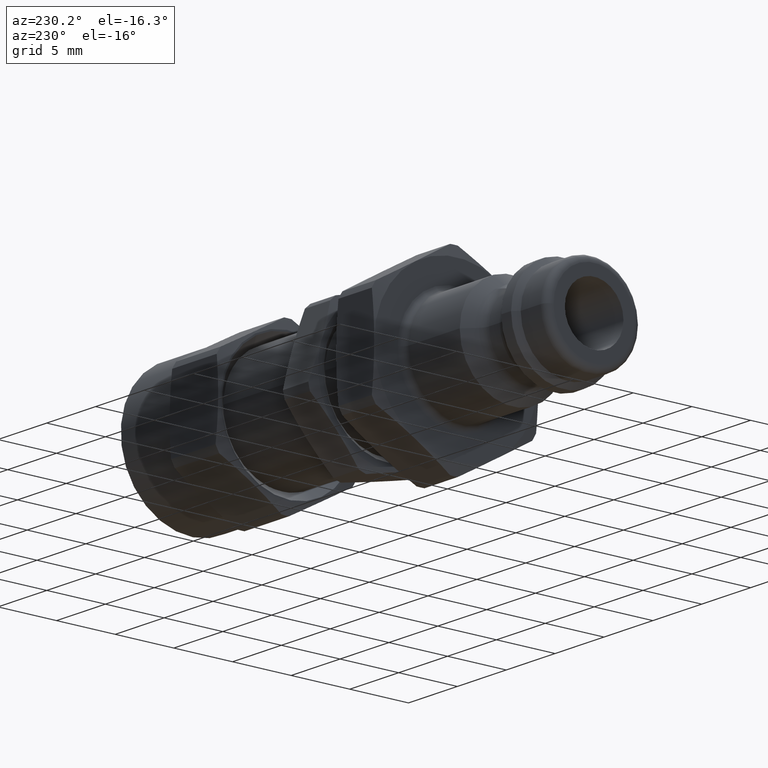
[diagram: clean part render]
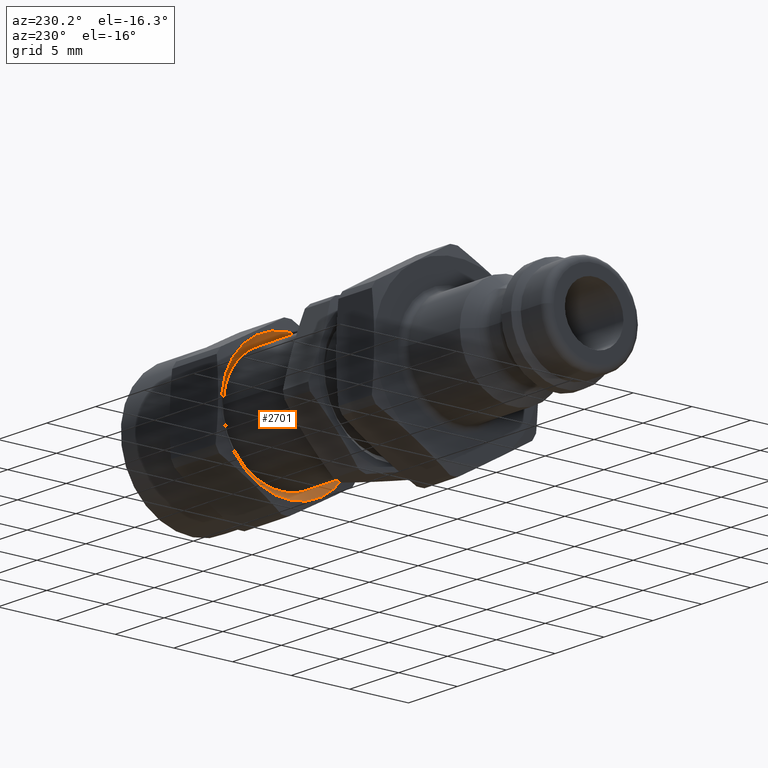
[diagram: same view with one face highlighted and labeled with its STEP entity id]
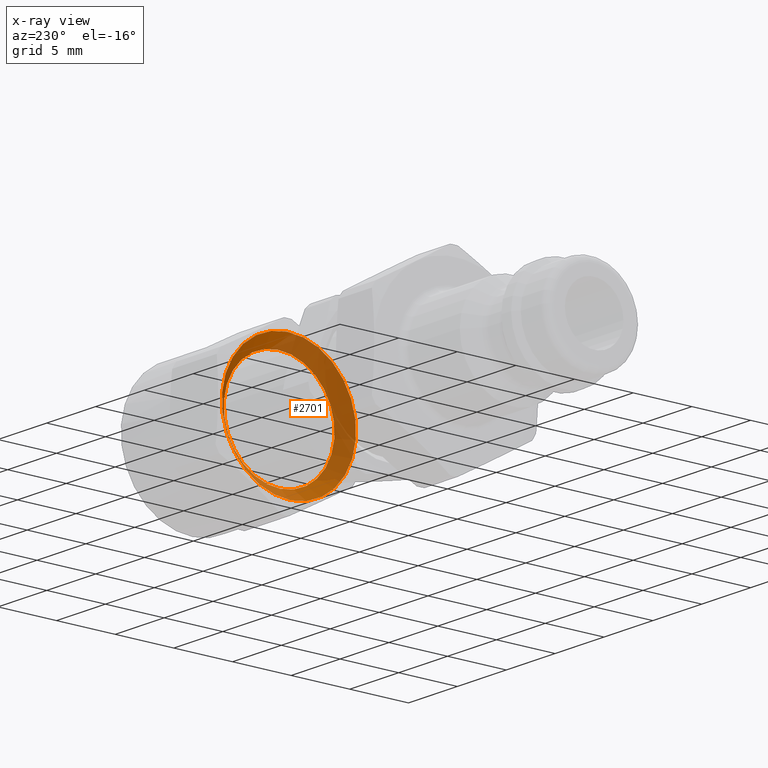
[diagram: x-ray of the same camera — body ghosted, the highlighted face saturated]
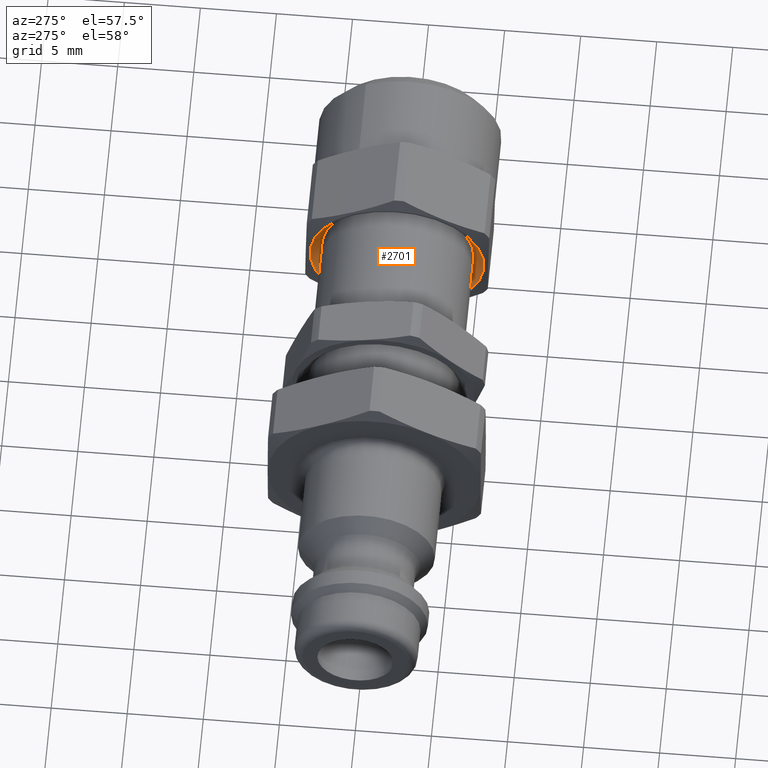
[diagram: same view with one face highlighted and labeled with its STEP entity id]
A machine part, auxiliary view. The second image highlights one B-rep face of the part: STEP entity #2701.
The next image is the same camera in x-ray: the body ghosted, the highlighted face saturated — about 65% of this face is hidden behind the body in this view.
A second angle (auxiliary view) of the same face is appended — the face is thin or edge-on in the first view.
In plain terms, the highlighted conical surface has half-angle 45 deg.
Its self-contained STEP definition (entity closure, byte-faithful):
#2674=CARTESIAN_POINT('',(10.499999999999998,1.285879E-015,0.0));
#2675=DIRECTION('',(1.0,1.224647E-016,0.0));
#2676=DIRECTION('',(0.0,-1.0,0.0));
#2677=AXIS2_PLACEMENT_3D('',#2674,#2675,#2676);
#2678=CONICAL_SURFACE('',#2677,5.223715095029409,44.999999999999922);
#2679=CARTESIAN_POINT('',(11.0,5.723715095029409,7.009529E-016));
#2680=VERTEX_POINT('',#2679);
#2681=CARTESIAN_POINT('',(11.0,1.347111E-015,0.0));
#2682=DIRECTION('',(1.0,0.0,0.0));
#2683=DIRECTION('',(0.0,-1.0,0.0));
#2684=AXIS2_PLACEMENT_3D('',#2681,#2682,#2683);
#2685=CIRCLE('',#2684,5.723715095029408);
#2686=EDGE_CURVE('',#2680,#2680,#2685,.T.);
#2687=ORIENTED_EDGE('',*,*,#2686,.T.);
#2688=EDGE_LOOP('',(#2687));
#2689=FACE_OUTER_BOUND('',#2688,.T.);
#2690=CARTESIAN_POINT('',(9.999999999999998,4.72371509502941,-5.784883E-016));
#2691=VERTEX_POINT('',#2690);
#2692=CARTESIAN_POINT('',(9.999999999999998,1.224647E-015,0.0));
#2693=DIRECTION('',(-1.0,0.0,0.0));
#2694=DIRECTION('',(0.0,-1.0,0.0));
#2695=AXIS2_PLACEMENT_3D('',#2692,#2693,#2694);
#2696=CIRCLE('',#2695,4.723715095029409);
#2697=EDGE_CURVE('',#2691,#2691,#2696,.T.);
#2698=ORIENTED_EDGE('',*,*,#2697,.T.);
#2699=EDGE_LOOP('',(#2698));
#2700=FACE_BOUND('',#2699,.T.);
#2701=ADVANCED_FACE('',(#2689,#2700),#2678,.F.);